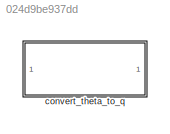
MODEL slx_024d9be937dd
KIND library
CONFIG AbsTol = auto
CONFIG EnableMultiTasking = off
CONFIG FixedStep = auto
CONFIG MaxStep = auto
CONFIG MinStep = auto
CONFIG RelTol = 1e-3
CONFIG SampleTimeConstraint = Unconstrained
CONFIG SolverName = VariableStepAuto
CONFIG StartTime = 0.0
CONFIG StopTime = 10.0
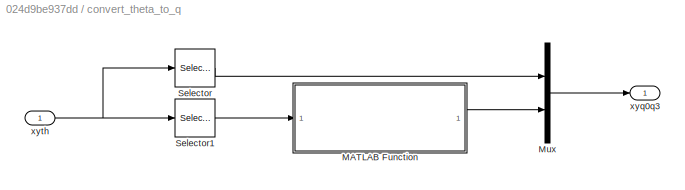
BLOCK [SubSystem] convert_theta_to_q
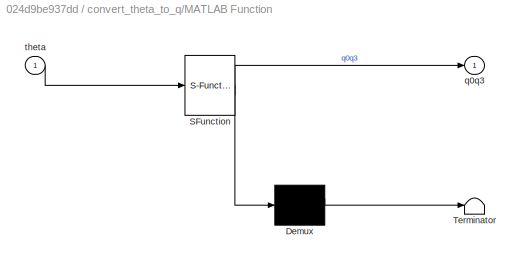
BLOCK [SubSystem] convert_theta_to_q/MATLAB Function
  ErrorFcn = Stateflow.Translate.translate
  PermitHierarchicalResolution = ExplicitOnly
  SFBlockType = MATLAB Function
  TreatAsAtomicUnit = on
BLOCK [Demux] convert_theta_to_q/MATLAB Function/ Demux 
  Outputs = 1
BLOCK [S-Function] convert_theta_to_q/MATLAB Function/ SFunction 
  EnableBusSupport = off
  FunctionName = sf_sfun
  PortCounts = [1 2]
  SFcnIsStateOwnerBlock = off
  SFunctionDeploymentMode = off
  Tag = Stateflow S-Function 2
BLOCK [Terminator] convert_theta_to_q/MATLAB Function/ Terminator 
BLOCK [Outport] convert_theta_to_q/MATLAB Function/q0q3
BLOCK [Inport] convert_theta_to_q/MATLAB Function/theta
BLOCK [Mux] convert_theta_to_q/Mux
  DisplayOption = bar
  Inputs = 2
BLOCK [Selector] convert_theta_to_q/Selector
  IndexOptions = Index vector (dialog)
  Indices = [1 2]
  InputPortWidth = 3
  OutputSizes = 1
BLOCK [Selector] convert_theta_to_q/Selector1
  IndexOptions = Index vector (dialog)
  Indices = [3]
  InputPortWidth = 3
  OutputSizes = 1
BLOCK [Outport] convert_theta_to_q/xyq0q3
BLOCK [Inport] convert_theta_to_q/xyth
LINE convert_theta_to_q/MATLAB Function:1 -> convert_theta_to_q/Mux:2
LINE convert_theta_to_q/Mux:1 -> convert_theta_to_q/xyq0q3:1
LINE convert_theta_to_q/Selector1:1 -> convert_theta_to_q/MATLAB Function:1
LINE convert_theta_to_q/Selector:1 -> convert_theta_to_q/Mux:1
NET convert_theta_to_q/xyth:1 -> convert_theta_to_q/Selector1:1, convert_theta_to_q/Selector:1
note: NET lines group one-source signal fan-out (src -> all destinations, sorted); 1:1 wires keep LINE
CHART convert_theta_to_q/MATLAB Function states=1 transitions=1
  STATE_LABEL 'eML_blk_kernel()'
  STATE_LABEL "SCRIPT:\nfunction q0q3 = theta_to_q0q3_no_outlier(theta)\n\npersistent initial_flag;\nif isempty(initial_flag)\n    initial_flag = false;\nend\npersistent q0q3_pre;\nif isempty(q0q3_pre)\n    q0q3_pre = zeros(2, 1, 'like', theta);\nend\n\nTHETA = 0.5 * theta;\nq0q3 = [cos(THETA); sin(THETA)];\n\nif (~initial_flag)\n    q0q3_pre = q0q3;\n    initial_flag = true;\nelse\n    diff = sum(abs(q0q3 - q0q3_pre));\n        \n ...<+182ch>"
CHART  states=0 transitions=0
